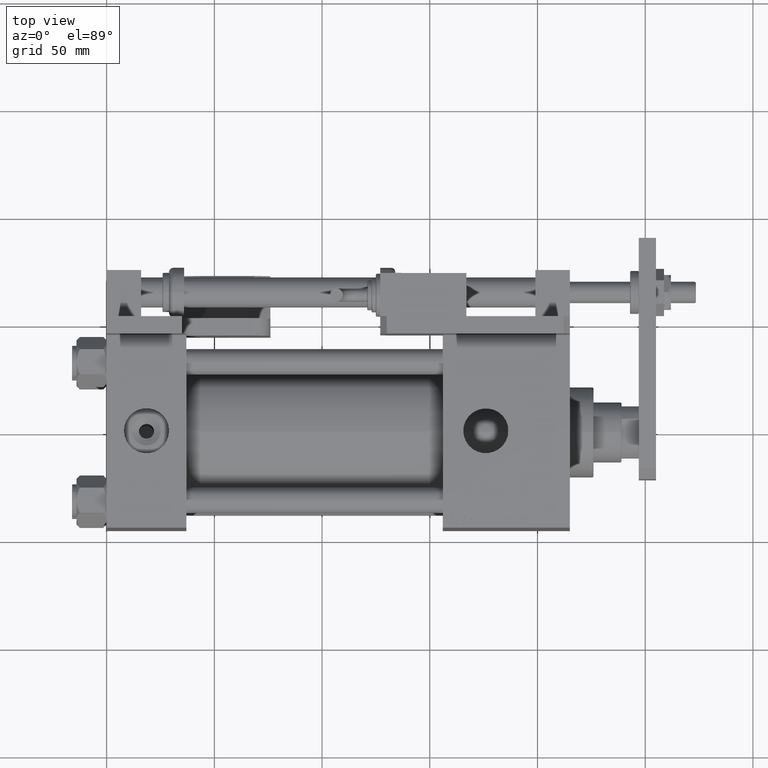
[diagram: clean part render]
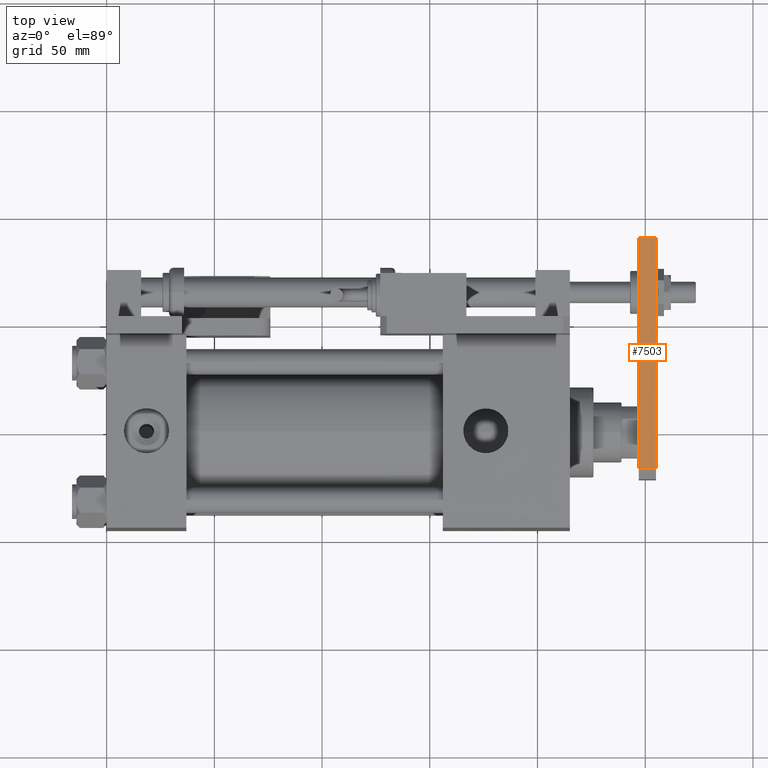
[diagram: same view with one face highlighted and labeled with its STEP entity id]
A machine part, top view. The second image highlights one B-rep face of the part: STEP entity #7503.
In plain terms, the highlighted planar face has unit normal (-0, -0, -1).
Its self-contained STEP definition (entity closure, byte-faithful):
#2096 = LINE ( 'NONE', #2957, #31712 ) ;
#2149 = EDGE_LOOP ( 'NONE', ( #37560, #17032, #32434, #4181 ) ) ;
#2309 = CARTESIAN_POINT ( 'NONE',  ( -20.00000000000000355, 112.0000000000000000, 0.000000000000000000 ) ) ;
#2375 = VERTEX_POINT ( 'NONE', #2309 ) ;
#2957 = CARTESIAN_POINT ( 'NONE',  ( -20.00000000000000355, 112.0000000000000000, 8.000000000000000000 ) ) ;
#3389 = DIRECTION ( 'NONE',  ( 0.000000000000000000, 0.000000000000000000, 1.000000000000000000 ) ) ;
#4181 = ORIENTED_EDGE ( 'NONE', *, *, #36914, .T. ) ;
#4329 = VERTEX_POINT ( 'NONE', #17682 ) ;
#5764 = VECTOR ( 'NONE', #3389, 1000.000000000000000 ) ;
#5951 = AXIS2_PLACEMENT_3D ( 'NONE', #46830, #46266, #20689 ) ;
#7079 = EDGE_CURVE ( 'NONE', #57252, #23451, #45153, .T. ) ;
#7503 = ADVANCED_FACE ( 'NONE', ( #28650 ), #47418, .F. ) ;
#9637 = EDGE_CURVE ( 'NONE', #2375, #4329, #57295, .T. ) ;
#10238 = DIRECTION ( 'NONE',  ( -9.293161478447180511E-17, -1.000000000000000000, 0.000000000000000000 ) ) ;
#10621 = DIRECTION ( 'NONE',  ( -0.000000000000000000, -0.000000000000000000, -1.000000000000000000 ) ) ;
#17032 = ORIENTED_EDGE ( 'NONE', *, *, #34251, .T. ) ;
#17682 = CARTESIAN_POINT ( 'NONE',  ( -20.00000000000001421, 5.000000000000018652, 0.000000000000000000 ) ) ;
#18109 = VECTOR ( 'NONE', #10238, 1000.000000000000000 ) ;
#18235 = CARTESIAN_POINT ( 'NONE',  ( -20.00000000000001421, 5.000000000000018652, 8.000000000000000000 ) ) ;
#20689 = DIRECTION ( 'NONE',  ( 9.293161478447180511E-17, 1.000000000000000000, 0.000000000000000000 ) ) ;
#23451 = VERTEX_POINT ( 'NONE', #18235 ) ;
#28650 = FACE_OUTER_BOUND ( 'NONE', #2149, .T. ) ;
#31431 = VECTOR ( 'NONE', #39704, 1000.000000000000000 ) ;
#31712 = VECTOR ( 'NONE', #10621, 1000.000000000000000 ) ;
#32434 = ORIENTED_EDGE ( 'NONE', *, *, #7079, .F. ) ;
#34251 = EDGE_CURVE ( 'NONE', #4329, #23451, #47977, .T. ) ;
#34476 = CARTESIAN_POINT ( 'NONE',  ( -20.00000000000001421, 5.000000000000018652, 8.000000000000000000 ) ) ;
#35005 = CARTESIAN_POINT ( 'NONE',  ( -20.00000000000000355, 112.0000000000000000, 0.000000000000000000 ) ) ;
#36914 = EDGE_CURVE ( 'NONE', #57252, #2375, #2096, .T. ) ;
#37560 = ORIENTED_EDGE ( 'NONE', *, *, #9637, .T. ) ;
#39704 = DIRECTION ( 'NONE',  ( -9.293161478447180511E-17, -1.000000000000000000, 0.000000000000000000 ) ) ;
#45153 = LINE ( 'NONE', #53945, #18109 ) ;
#46266 = DIRECTION ( 'NONE',  ( 1.000000000000000000, -9.293161478447180511E-17, 0.000000000000000000 ) ) ;
#46830 = CARTESIAN_POINT ( 'NONE',  ( -20.00000000000000355, 112.0000000000000000, 8.000000000000000000 ) ) ;
#47418 = PLANE ( 'NONE',  #5951 ) ;
#47977 = LINE ( 'NONE', #34476, #5764 ) ;
#53945 = CARTESIAN_POINT ( 'NONE',  ( -20.00000000000000355, 112.0000000000000000, 8.000000000000000000 ) ) ;
#54236 = CARTESIAN_POINT ( 'NONE',  ( -20.00000000000000355, 112.0000000000000000, 8.000000000000000000 ) ) ;
#57252 = VERTEX_POINT ( 'NONE', #54236 ) ;
#57295 = LINE ( 'NONE', #35005, #31431 ) ;